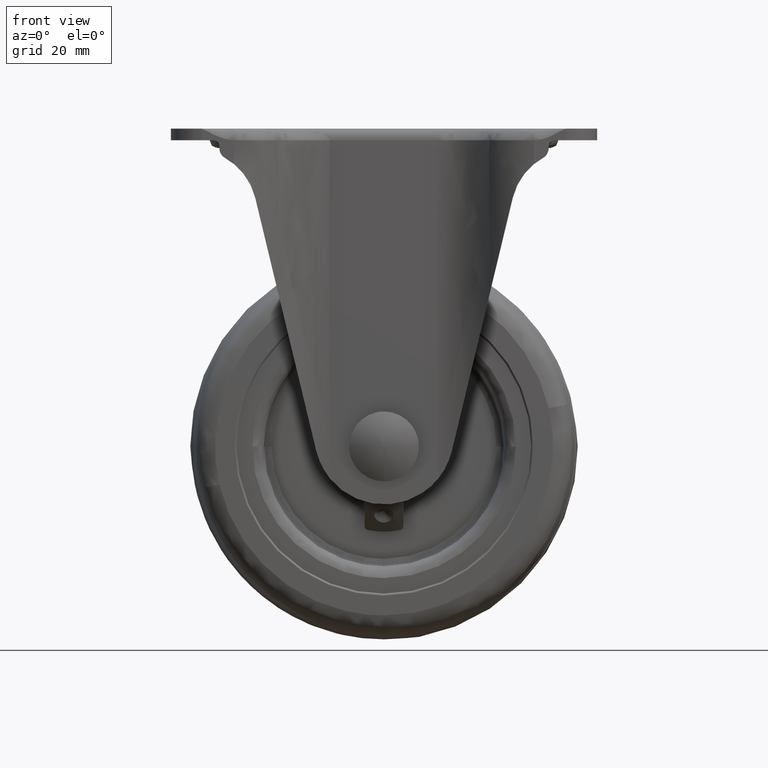
[diagram: clean part render]
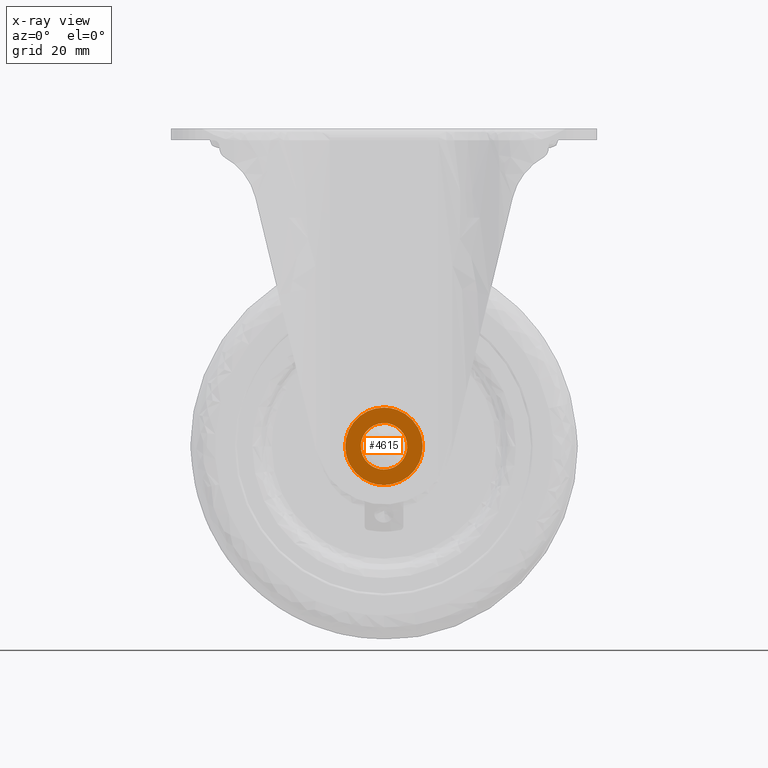
[diagram: x-ray — body ghosted, one internal face saturated and labeled with its STEP entity id]
A machine part, front view, then the same camera in x-ray: the body is ghosted and one INTERNAL B-rep face — a face not visible from any outside direction — is saturated and labeled: STEP entity #4615.
In plain terms, the highlighted face is a freeform B-spline surface patch.
Its self-contained STEP definition (entity closure, byte-faithful):
#2281=CARTESIAN_POINT('',(5.988816775586408,-22.0,-0.366283725976467));
#2282=VERTEX_POINT('',#2281);
#2283=CARTESIAN_POINT('',(0.0,-22.0,6.000015999999983));
#2284=VERTEX_POINT('',#2283);
#2285=CARTESIAN_POINT('',(5.988816775586410,-22.0,-0.366283725976467));
#2286=CARTESIAN_POINT('',(6.000008000000000,-22.0,-0.183308824403685));
#2287=CARTESIAN_POINT('',(6.000008000000000,-22.0,0.000007999999983));
#2288=CARTESIAN_POINT('',(6.000008000000001,-22.000000000000007,6.000015999999984));
#2289=CARTESIAN_POINT('',(0.0,-22.0,6.000015999999983));
#2297=(BOUNDED_CURVE()B_SPLINE_CURVE(2,(#2285,#2286,#2287,#2288,#2289),.UNSPECIFIED.,.F.,.U.)B_SPLINE_CURVE_WITH_KNOTS((3,2,3),(0.239332962231049,0.250000000000000,0.500000000000000),.UNSPECIFIED.)CURVE()GEOMETRIC_REPRESENTATION_ITEM()RATIONAL_B_SPLINE_CURVE((0.976072041649800,0.987502787890589,1.0,0.707106781186548,1.0))REPRESENTATION_ITEM(''));
#2298=EDGE_CURVE('',#2282,#2284,#2297,.T.);
#2300=CARTESIAN_POINT('',(-5.988816775586408,-22.0,0.366299725976432));
#2301=VERTEX_POINT('',#2300);
#2302=CARTESIAN_POINT('',(0.0,-22.0,6.000015999999983));
#2303=CARTESIAN_POINT('',(-5.644243926724850,-22.000000000000004,6.000015999999985));
#2304=CARTESIAN_POINT('',(-5.988816775586409,-22.000000000000004,0.366299725976433));
#2312=(BOUNDED_CURVE()B_SPLINE_CURVE(2,(#2302,#2303,#2304),.UNSPECIFIED.,.F.,.U.)B_SPLINE_CURVE_WITH_KNOTS((3,3),(0.500000000000000,0.739332962231049),.UNSPECIFIED.)CURVE()GEOMETRIC_REPRESENTATION_ITEM()RATIONAL_B_SPLINE_CURVE((1.0,0.719603993295959,0.976072041649799))REPRESENTATION_ITEM(''));
#2313=EDGE_CURVE('',#2284,#2301,#2312,.T.);
#2348=CARTESIAN_POINT('',(0.0,-22.0,-6.000000000000018));
#2349=VERTEX_POINT('',#2348);
#2350=CARTESIAN_POINT('',(0.0,-22.0,-6.000000000000018));
#2351=CARTESIAN_POINT('',(5.644243926724853,-22.000000000000007,-6.000000000000020));
#2352=CARTESIAN_POINT('',(5.988816775586410,-22.0,-0.366283725976467));
#2360=(BOUNDED_CURVE()B_SPLINE_CURVE(2,(#2350,#2351,#2352),.UNSPECIFIED.,.F.,.U.)B_SPLINE_CURVE_WITH_KNOTS((3,3),(0.0,0.239332962231049),.UNSPECIFIED.)CURVE()GEOMETRIC_REPRESENTATION_ITEM()RATIONAL_B_SPLINE_CURVE((1.0,0.719603993295958,0.976072041649800))REPRESENTATION_ITEM(''));
#2361=EDGE_CURVE('',#2349,#2282,#2360,.T.);
#2367=CARTESIAN_POINT('',(-5.988816775586409,-22.000000000000004,0.366299725976433));
#2368=CARTESIAN_POINT('',(-6.000008000000000,-22.000000000000004,0.183324824403650));
#2369=CARTESIAN_POINT('',(-6.000008000000000,-22.0,0.000007999999983));
#2370=CARTESIAN_POINT('',(-6.000008000000001,-22.000000000000007,-6.000000000000020));
#2371=CARTESIAN_POINT('',(0.0,-22.0,-6.000000000000018));
#2379=(BOUNDED_CURVE()B_SPLINE_CURVE(2,(#2367,#2368,#2369,#2370,#2371),.UNSPECIFIED.,.F.,.U.)B_SPLINE_CURVE_WITH_KNOTS((3,2,3),(0.739332962231049,0.750000000000000,1.0),.UNSPECIFIED.)CURVE()GEOMETRIC_REPRESENTATION_ITEM()RATIONAL_B_SPLINE_CURVE((0.976072041649799,0.987502787890589,1.0,0.707106781186548,1.0))REPRESENTATION_ITEM(''));
#2380=EDGE_CURVE('',#2301,#2349,#2379,.T.);
#4538=CARTESIAN_POINT('',(-10.997054249053770,-22.0,10.999016760435920));
#4539=CARTESIAN_POINT('',(-10.997054249053770,-22.0,-10.999001296878189));
#4540=CARTESIAN_POINT('',(10.997054249053770,-22.0,10.999016760435920));
#4541=CARTESIAN_POINT('',(10.997054249053770,-22.0,-10.999001296878189));
#4542=B_SPLINE_SURFACE_WITH_KNOTS('',1,1,((#4538,#4540),(#4539,#4541)),.UNSPECIFIED.,.F.,.F.,.U.,(2,2),(2,2),(0.0,21.998018057314109),(0.0,21.994108498107540),.UNSPECIFIED.);
#4543=CARTESIAN_POINT('',(0.0,-22.0,-9.999999999999879));
#4544=VERTEX_POINT('',#4543);
#4545=CARTESIAN_POINT('',(8.763073844212482,-22.0,4.817548614663830));
#4546=VERTEX_POINT('',#4545);
#4547=CARTESIAN_POINT('',(0.0,-22.0,-9.999999999999879));
#4548=CARTESIAN_POINT('',(10.000008010014904,-22.000000000000007,-9.999999994494063));
#4549=CARTESIAN_POINT('',(10.000008026949420,-22.0,0.000008014815628));
#4550=CARTESIAN_POINT('',(10.000008031297460,-22.0,2.567573675540901));
#4551=CARTESIAN_POINT('',(8.763073844212482,-22.000000000000004,4.817548614663830));
#4559=(BOUNDED_CURVE()B_SPLINE_CURVE(2,(#4547,#4548,#4549,#4550,#4551),.UNSPECIFIED.,.F.,.U.)B_SPLINE_CURVE_WITH_KNOTS((3,2,3),(0.0,0.250000000000000,0.332050816120831),.UNSPECIFIED.)CURVE()GEOMETRIC_REPRESENTATION_ITEM()RATIONAL_B_SPLINE_CURVE((1.0,0.707106781186548,1.0,0.903871489440397,0.870842360831956))REPRESENTATION_ITEM(''));
#4560=EDGE_CURVE('',#4544,#4546,#4559,.T.);
#4561=ORIENTED_EDGE('',*,*,#4560,.T.);
#4562=CARTESIAN_POINT('',(0.0,-22.0,10.000015999999841));
#4563=VERTEX_POINT('',#4562);
#4564=CARTESIAN_POINT('',(8.763073844212482,-22.000000000000004,4.817548614663830));
#4565=CARTESIAN_POINT('',(5.913988261347577,-22.000000000000007,10.000016009309672));
#4566=CARTESIAN_POINT('',(0.0,-22.0,10.000015999999841));
#4574=(BOUNDED_CURVE()B_SPLINE_CURVE(2,(#4564,#4565,#4566),.UNSPECIFIED.,.F.,.U.)B_SPLINE_CURVE_WITH_KNOTS((3,3),(0.332050816120831,0.500000000000000),.UNSPECIFIED.)CURVE()GEOMETRIC_REPRESENTATION_ITEM()RATIONAL_B_SPLINE_CURVE((0.870842360831956,0.803235291746151,1.0))REPRESENTATION_ITEM(''));
#4575=EDGE_CURVE('',#4546,#4563,#4574,.T.);
#4576=ORIENTED_EDGE('',*,*,#4575,.T.);
#4577=CARTESIAN_POINT('',(-8.763073844212480,-22.0,-4.817532614663865));
#4578=VERTEX_POINT('',#4577);
#4579=CARTESIAN_POINT('',(0.0,-22.0,10.000015999999841));
#4580=CARTESIAN_POINT('',(-10.000008010014902,-22.000000000000007,10.000015994494026));
#4581=CARTESIAN_POINT('',(-10.000008026949409,-22.0,0.000007985184338));
#4582=CARTESIAN_POINT('',(-10.000008031297460,-22.0,-2.567557675540936));
#4583=CARTESIAN_POINT('',(-8.763073844212480,-22.000000000000004,-4.817532614663865));
#4591=(BOUNDED_CURVE()B_SPLINE_CURVE(2,(#4579,#4580,#4581,#4582,#4583),.UNSPECIFIED.,.F.,.U.)B_SPLINE_CURVE_WITH_KNOTS((3,2,3),(0.500000000000000,0.750000000000000,0.832050816120831),.UNSPECIFIED.)CURVE()GEOMETRIC_REPRESENTATION_ITEM()RATIONAL_B_SPLINE_CURVE((1.0,0.707106781186548,1.0,0.903871489440397,0.870842360831956))REPRESENTATION_ITEM(''));
#4592=EDGE_CURVE('',#4563,#4578,#4591,.T.);
#4593=ORIENTED_EDGE('',*,*,#4592,.T.);
#4594=CARTESIAN_POINT('',(-8.763073844212480,-22.000000000000004,-4.817532614663865));
#4595=CARTESIAN_POINT('',(-5.913988261347576,-22.000000000000007,-10.000000009309709));
#4596=CARTESIAN_POINT('',(0.0,-22.0,-9.999999999999879));
#4604=(BOUNDED_CURVE()B_SPLINE_CURVE(2,(#4594,#4595,#4596),.UNSPECIFIED.,.F.,.U.)B_SPLINE_CURVE_WITH_KNOTS((3,3),(0.832050816120831,1.0),.UNSPECIFIED.)CURVE()GEOMETRIC_REPRESENTATION_ITEM()RATIONAL_B_SPLINE_CURVE((0.870842360831956,0.803235291746151,1.0))REPRESENTATION_ITEM(''));
#4605=EDGE_CURVE('',#4578,#4544,#4604,.T.);
#4606=ORIENTED_EDGE('',*,*,#4605,.T.);
#4607=EDGE_LOOP('',(#4561,#4576,#4593,#4606));
#4608=FACE_OUTER_BOUND('',#4607,.T.);
#4609=ORIENTED_EDGE('',*,*,#2313,.F.);
#4610=ORIENTED_EDGE('',*,*,#2298,.F.);
#4611=ORIENTED_EDGE('',*,*,#2361,.F.);
#4612=ORIENTED_EDGE('',*,*,#2380,.F.);
#4613=EDGE_LOOP('',(#4609,#4610,#4611,#4612));
#4614=FACE_BOUND('',#4613,.T.);
#4615=ADVANCED_FACE('',(#4608,#4614),#4542,.T.);